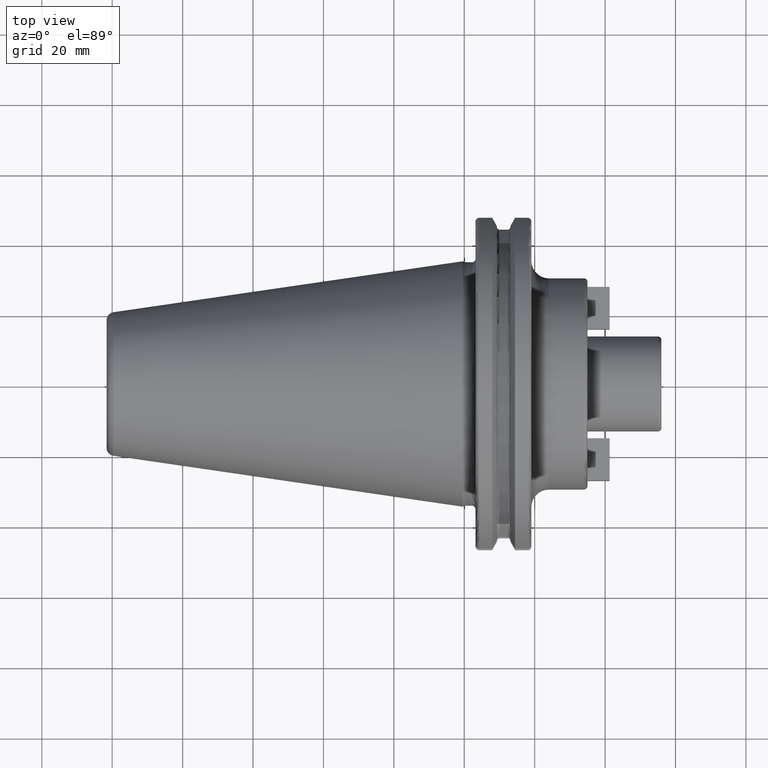
[diagram: clean part render]
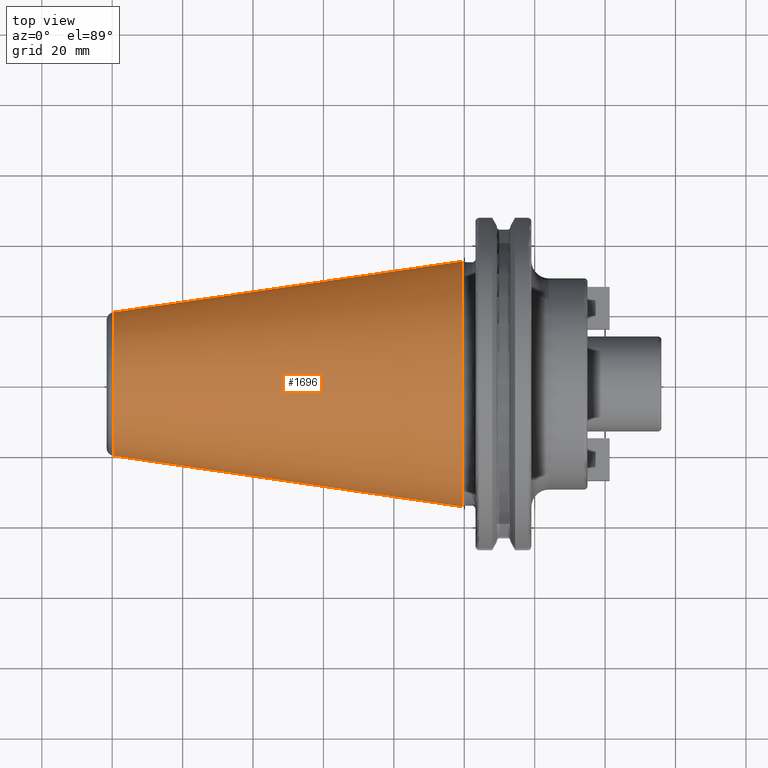
[diagram: same view with one face highlighted and labeled with its STEP entity id]
A machine part, top view. The second image highlights one B-rep face of the part: STEP entity #1696.
In plain terms, the highlighted conical surface has half-angle 8.298 deg.
Its self-contained STEP definition (entity closure, byte-faithful):
#37=CARTESIAN_POINT('',(-9.967471700563E1,0.E0,0.E0));
#38=DIRECTION('',(1.E0,0.E0,0.E0));
#39=DIRECTION('',(0.E0,1.E0,0.E0));
#40=AXIS2_PLACEMENT_3D('',#37,#38,#39);
#42=CARTESIAN_POINT('',(-4.896823332305E-1,0.E0,0.E0));
#43=DIRECTION('',(1.E0,0.E0,0.E0));
#44=DIRECTION('',(0.E0,1.E0,0.E0));
#45=AXIS2_PLACEMENT_3D('',#42,#43,#44);
#47=DIRECTION('',(-9.895312636440E-1,-1.443186691705E-1,0.E0));
#48=VECTOR('',#47,1.002343617797E2);
#49=CARTESIAN_POINT('',(-4.896823332305E-1,3.485358204157E1,0.E0));
#50=LINE('',#49,#48);
#51=DIRECTION('',(-9.895312636440E-1,1.443186691705E-1,0.E0));
#52=VECTOR('',#51,1.002343617797E2);
#53=CARTESIAN_POINT('',(-4.896823332305E-1,-3.485358204157E1,0.E0));
#54=LINE('',#53,#52);
#1340=CARTESIAN_POINT('',(-9.967471700563E1,2.038789234437E1,0.E0));
#1342=VERTEX_POINT('',#1340);
#1344=CARTESIAN_POINT('',(-9.967471700563E1,-2.038789234437E1,0.E0));
#1346=VERTEX_POINT('',#1344);
#1408=CARTESIAN_POINT('',(-4.896823332305E-1,3.485358204157E1,0.E0));
#1409=VERTEX_POINT('',#1408);
#1410=CARTESIAN_POINT('',(-4.896823332305E-1,-3.485358204157E1,0.E0));
#1411=VERTEX_POINT('',#1410);
#1682=CARTESIAN_POINT('',(-5.008219966943E1,0.E0,0.E0));
#1683=DIRECTION('',(1.E0,0.E0,0.E0));
#1684=DIRECTION('',(0.E0,-1.E0,0.E0));
#1685=AXIS2_PLACEMENT_3D('',#1682,#1683,#1684);
#1686=CONICAL_SURFACE('',#1685,2.762073719297E1,8.297826828206E0);
#1688=ORIENTED_EDGE('',*,*,#1687,.F.);
#1690=ORIENTED_EDGE('',*,*,#1689,.T.);
#1692=ORIENTED_EDGE('',*,*,#1691,.T.);
#1693=ORIENTED_EDGE('',*,*,#1675,.F.);
#1694=EDGE_LOOP('',(#1688,#1690,#1692,#1693));
#1695=FACE_OUTER_BOUND('',#1694,.F.);
#1696=ADVANCED_FACE('',(#1695),#1686,.T.);
#41=CIRCLE('',#40,2.038789234437E1);
#46=CIRCLE('',#45,3.485358204157E1);
#1675=EDGE_CURVE('',#1342,#1346,#41,.T.);
#1687=EDGE_CURVE('',#1409,#1342,#50,.T.);
#1689=EDGE_CURVE('',#1409,#1411,#46,.T.);
#1691=EDGE_CURVE('',#1411,#1346,#54,.T.);